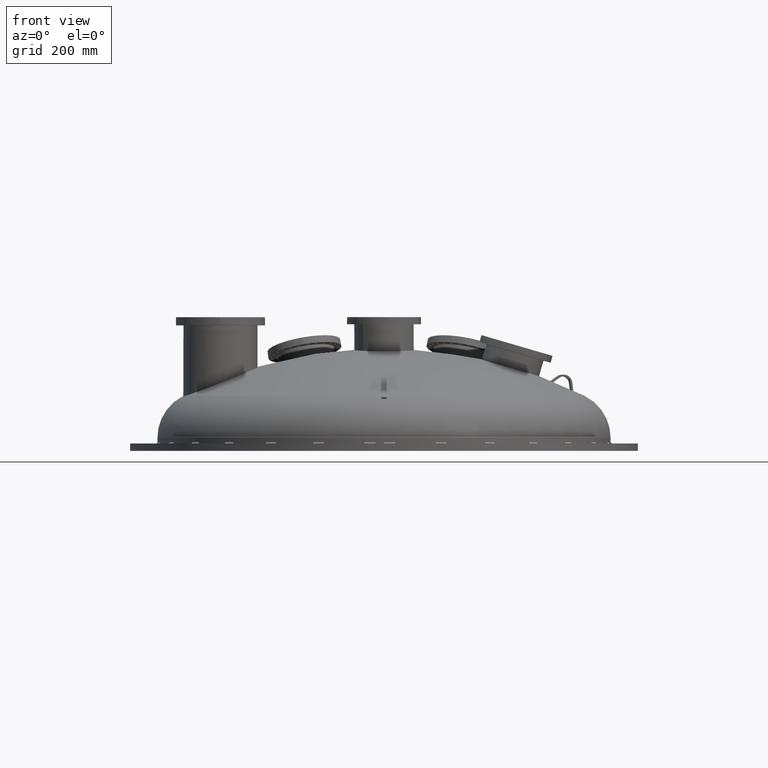
[diagram: clean part render]
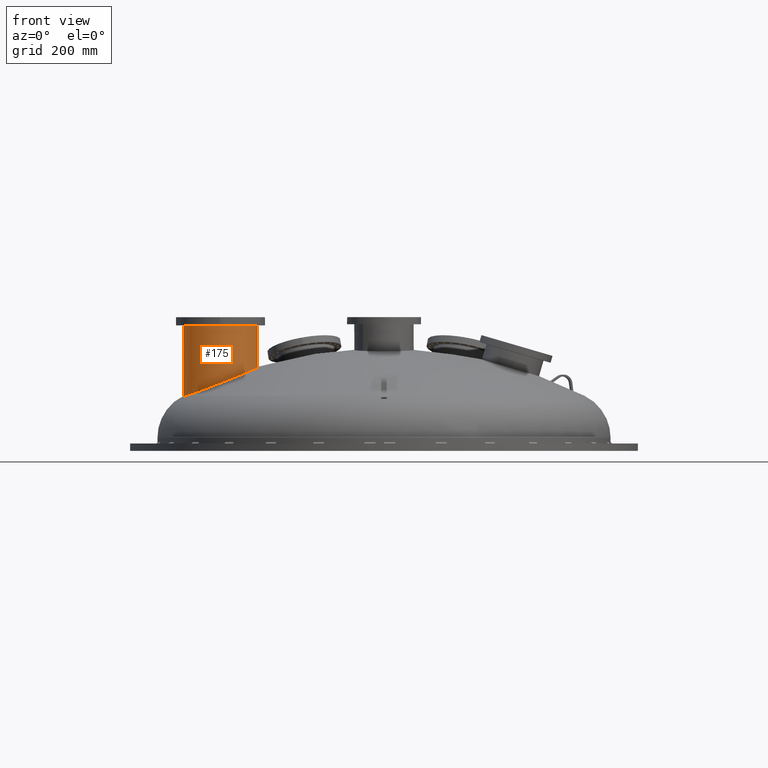
[diagram: same view with one face highlighted and labeled with its STEP entity id]
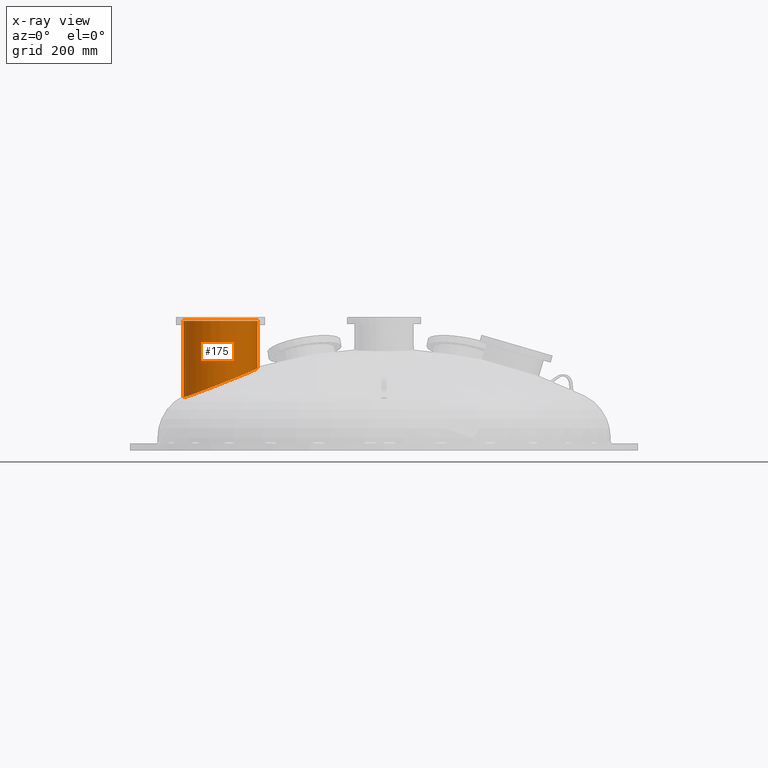
[diagram: x-ray of the same camera — body ghosted, the highlighted face saturated]
A machine part, front view. The second image highlights one B-rep face of the part: STEP entity #175.
The next image is the same camera in x-ray: the body ghosted, the highlighted face saturated — about 0% of this face is hidden behind the body in this view.
In plain terms, the highlighted cylindrical surface (bore or boss wall) has radius 127 mm, axis along (-0, -0, 1).
Its self-contained STEP definition (entity closure, byte-faithful):
#88 = CARTESIAN_POINT ( 'NONE',  ( -17.03454863221168125, -2.888648846415418525, 11.11092504920758905 ) ) ;
#175 = ADVANCED_FACE ( 'NONE', ( #24210, #8603 ), #16236, .T. ) ;
#378 = CARTESIAN_POINT ( 'NONE',  ( -26.91084152535004037, -1.360581039014059135, 7.308263998955751184 ) ) ;
#565 = CARTESIAN_POINT ( 'NONE',  ( -26.60930552109050851, -4.238202213252508344, 7.308263998955749408 ) ) ;
#619 = CARTESIAN_POINT ( 'NONE',  ( -23.67972091146016211, 2.411004436346439128, 8.757887126058699678 ) ) ;
#695 = CARTESIAN_POINT ( 'NONE',  ( -26.13499194246405466, -5.112656040607974184, 7.463060936114707999 ) ) ;
#752 = CARTESIAN_POINT ( 'NONE',  ( -17.25519042708335959, -0.7161709801282579724, 11.11357766232980460 ) ) ;
#885 = CARTESIAN_POINT ( 'NONE',  ( -26.17393540491700676, 0.4563803238809668317, 7.682613628264004291 ) ) ;
#1007 = CARTESIAN_POINT ( 'NONE',  ( -17.76262779274797765, 0.3538566771928217114, 10.96373746287888551 ) ) ;
#1113 = CARTESIAN_POINT ( 'NONE',  ( -26.98512067342971932, -1.844313376774368018, 7.256650016149816196 ) ) ;
#1140 = CARTESIAN_POINT ( 'NONE',  ( -19.61979623065603562, 2.106329999584297674, 10.32513199719387842 ) ) ;
#1251 = CARTESIAN_POINT ( 'NONE',  ( -18.28125984896919221, -5.643109768327902565, 10.52675692674171337 ) ) ;
#1317 = EDGE_CURVE ( 'NONE', #11589, #4820, #21739, .T. ) ;
#1650 = CARTESIAN_POINT ( 'NONE',  ( -22.00000000000000355, -2.300599928663488392, 17.50000000000000000 ) ) ;
#1723 = CARTESIAN_POINT ( 'NONE',  ( -23.12949110631962313, -7.171489711280562673, 8.578493592685848768 ) ) ;
#1850 = CARTESIAN_POINT ( 'NONE',  ( -18.43459769598376141, -5.806806038479090049, 10.46152507389343356 ) ) ;
#1979 = CARTESIAN_POINT ( 'NONE',  ( -23.65331364298999972, -7.028213393768560913, 8.376833065619633700 ) ) ;
#2087 = CARTESIAN_POINT ( 'NONE',  ( -18.13357437886203982, -5.474413113026209032, 10.58997342605866088 ) ) ;
#2500 = CARTESIAN_POINT ( 'NONE',  ( -25.81763148723965173, 0.9316578560976229717, 7.845753435345422133 ) ) ;
#2623 = CARTESIAN_POINT ( 'NONE',  ( -26.08970691586491242, 0.5797385813231358265, 7.721687858268396987 ) ) ;
#2754 = CARTESIAN_POINT ( 'NONE',  ( -25.35439753358903658, 1.407970034357033828, 8.051181969123211601 ) ) ;
#2877 = CARTESIAN_POINT ( 'NONE',  ( -18.43768523999666087, 1.211137170921507744, 10.74120913522562226 ) ) ;
#2993 = CARTESIAN_POINT ( 'NONE',  ( -22.13178497235033859, 2.698183655108841617, 9.377032089186451813 ) ) ;
#3117 = CARTESIAN_POINT ( 'NONE',  ( -23.09406433196298636, -7.179569782327591909, 8.592179378259533706 ) ) ;
#3572 = CARTESIAN_POINT ( 'NONE',  ( -17.00250312868686109, -2.079971429572094799, 11.15511920327153916 ) ) ;
#3695 = CARTESIAN_POINT ( 'NONE',  ( -20.95008121321527739, -7.191241604980521451, 9.433770713482987347 ) ) ;
#3813 = CARTESIAN_POINT ( 'NONE',  ( -22.23720637589785554, -7.303231902276164256, 8.925240544865479464 ) ) ;
#3939 = CARTESIAN_POINT ( 'NONE',  ( -19.73047951608260320, -6.756447584176479282, 9.924798341778512167 ) ) ;
#4125 = AXIS2_PLACEMENT_3D ( 'NONE', #23968, #7095, #4847 ) ;
#4173 = CARTESIAN_POINT ( 'NONE',  ( -26.09160426887386208, -5.175422892887286075, 7.477927953534289962 ) ) ;
#4362 = CARTESIAN_POINT ( 'NONE',  ( -22.56451117588003186, 2.669501389840496675, 9.206768470613566180 ) ) ;
#4477 = CARTESIAN_POINT ( 'NONE',  ( -19.24481798667008547, 1.874393774019742276, 10.45949627558731265 ) ) ;
#4581 = CARTESIAN_POINT ( 'NONE',  ( -26.70445430126011388, -4.011855557259706551, 7.279329110224899146 ) ) ;
#4604 = CARTESIAN_POINT ( 'NONE',  ( -20.21982897751013653, 2.372335189419764401, 10.10507433598720972 ) ) ;
#4736 = CARTESIAN_POINT ( 'NONE',  ( -17.86539581277328637, 0.5151517893729725683, 10.93114487143467173 ) ) ;
#4820 = VERTEX_POINT ( 'NONE', #16354 ) ;
#4847 = DIRECTION ( 'NONE',  ( 0.9951847266721969287, 0.09801714032955967382, 0.0000000000000000000 ) ) ;
#4853 = CARTESIAN_POINT ( 'NONE',  ( -21.91552221261713740, 2.699202996723948811, 9.461398831814339161 ) ) ;
#4967 = CARTESIAN_POINT ( 'NONE',  ( -24.31638578408431073, -6.734059063610549956, 8.125012170350084162 ) ) ;
#5438 = CARTESIAN_POINT ( 'NONE',  ( -16.99839070805311891, -2.387527508328878501, 11.14448272943456963 ) ) ;
#5543 = CARTESIAN_POINT ( 'NONE',  ( -26.91084152535004037, -1.360581039014059135, 7.308263998955751184 ) ) ;
#5562 = CARTESIAN_POINT ( 'NONE',  ( -17.06758293456559983, -1.466578981214567756, 11.15481489060235809 ) ) ;
#5679 = CARTESIAN_POINT ( 'NONE',  ( -23.02295103800876319, -7.194973715908750123, 8.619674863630050865 ) ) ;
#5807 = CARTESIAN_POINT ( 'NONE',  ( -19.34745307717916774, -6.541509074953713032, 10.08132628869596381 ) ) ;
#6046 = CARTESIAN_POINT ( 'NONE',  ( -25.40116154046670616, -5.968570887441477346, 7.722640789847509346 ) ) ;
#6159 = CARTESIAN_POINT ( 'NONE',  ( -25.95534340438065257, -5.359473985859828815, 7.525142038195032690 ) ) ;
#6220 = CARTESIAN_POINT ( 'NONE',  ( -26.60262773672108949, -0.3413517450155327260, 7.476124793558262205 ) ) ;
#6353 = CARTESIAN_POINT ( 'NONE',  ( -26.29238292405809219, 0.2639429035619736408, 7.626808986819469283 ) ) ;
#6418 = CARTESIAN_POINT ( 'NONE',  ( -25.50852392069591090, -5.866060936327992970, 7.683781968358652570 ) ) ;
#6467 = CARTESIAN_POINT ( 'NONE',  ( -22.42118115851190652, 2.683735887462491476, 9.263422606491555911 ) ) ;
#6597 = CARTESIAN_POINT ( 'NONE',  ( -18.54424714027179633, 1.316056665913713175, 10.70478958245215750 ) ) ;
#6725 = CARTESIAN_POINT ( 'NONE',  ( -18.23408668084476503, 0.9918582378966398494, 10.80998354203444478 ) ) ;
#6827 = CARTESIAN_POINT ( 'NONE',  ( -26.91084152535004037, -1.360581039014059135, 7.308263998955751184 ) ) ;
#6845 = CARTESIAN_POINT ( 'NONE',  ( -19.66553079479646371, -6.722774866265549321, 9.951255545470852226 ) ) ;
#7095 = DIRECTION ( 'NONE',  ( -3.253258288883481936E-18, -1.598223312192492571E-19, 1.000000000000000000 ) ) ;
#7315 = CARTESIAN_POINT ( 'NONE',  ( -17.04915190290446603, -3.004260629318171727, 11.10080991909084958 ) ) ;
#7345 = ORIENTED_EDGE ( 'NONE', *, *, #21594, .T. ) ;
#7440 = CARTESIAN_POINT ( 'NONE',  ( -17.13340261699011080, -3.457968870191340027, 11.05089033284481026 ) ) ;
#7490 = DIRECTION ( 'NONE',  ( 0.9951847266721969287, 0.09801714032955967382, 0.0000000000000000000 ) ) ;
#7571 = CARTESIAN_POINT ( 'NONE',  ( -19.86118964552333210, -6.820643271779196937, 9.871660036310329289 ) ) ;
#7685 = CARTESIAN_POINT ( 'NONE',  ( -17.06063652736476399, -3.080743627078291080, 11.09342660260088209 ) ) ;
#7823 = EDGE_LOOP ( 'NONE', ( #11328, #9371 ) ) ;
#7932 = CARTESIAN_POINT ( 'NONE',  ( -26.54922063506848318, -4.381136394884180163, 7.326535904158885337 ) ) ;
#7980 = CARTESIAN_POINT ( 'NONE',  ( -26.71254721671490273, -0.6228829506857630482, 7.419793872830630299 ) ) ;
#8050 = CARTESIAN_POINT ( 'NONE',  ( -24.82221075664396892, -6.428631079264673254, 7.935579580659530841 ) ) ;
#8123 = VERTEX_POINT ( 'NONE', #19603 ) ;
#8225 = CARTESIAN_POINT ( 'NONE',  ( -17.48382697809174502, -0.1494069415116378585, 11.04947627699419854 ) ) ;
#8299 = CARTESIAN_POINT ( 'NONE',  ( -25.06263585320626675, -6.255619985829578233, 7.846501837393472734 ) ) ;
#8363 = CARTESIAN_POINT ( 'NONE',  ( -17.16681485255331552, -1.010656400171438207, 11.13534692075112353 ) ) ;
#8464 = CARTESIAN_POINT ( 'NONE',  ( -26.94670951989270691, -3.069239399090599285, 7.217988032296413614 ) ) ;
#8485 = CARTESIAN_POINT ( 'NONE',  ( -24.08335129347704395, 2.247019943697150079, 8.591608839422123722 ) ) ;
#8588 = CARTESIAN_POINT ( 'NONE',  ( -26.99570727274382165, -2.516647116475179580, 7.221860072491950611 ) ) ;
#8603 = FACE_OUTER_BOUND ( 'NONE', #7823, .T. ) ;
#8612 = CARTESIAN_POINT ( 'NONE',  ( -20.49670642701362766, 2.468619211551259518, 10.00220548123914810 ) ) ;
#8740 = CARTESIAN_POINT ( 'NONE',  ( -26.33069591292129275, 0.1987007765081426902, 7.608623616731867934 ) ) ;
#8790 = EDGE_LOOP ( 'NONE', ( #7345 ) ) ;
#8855 = CARTESIAN_POINT ( 'NONE',  ( -20.53079694923754417, -7.088528943960248796, 9.601245908657746853 ) ) ;
#9245 = DIRECTION ( 'NONE',  ( 3.253258288883481936E-18, 1.598223312192492571E-19, -1.000000000000000000 ) ) ;
#9320 = CARTESIAN_POINT ( 'NONE',  ( -17.21301417029741998, -3.752508886332220683, 11.00900941416065670 ) ) ;
#9371 = ORIENTED_EDGE ( 'NONE', *, *, #1317, .F. ) ;
#9444 = CARTESIAN_POINT ( 'NONE',  ( -17.55723223684687895, -4.599538687237948231, 10.84458160080521871 ) ) ;
#9564 = CARTESIAN_POINT ( 'NONE',  ( -17.04417807079283520, -1.619711267789774034, 11.15759821381699268 ) ) ;
#9675 = CARTESIAN_POINT ( 'NONE',  ( -18.48711107463859804, -5.859404774117014547, 10.43930629756934891 ) ) ;
#10035 = CARTESIAN_POINT ( 'NONE',  ( -26.33878561821323316, -4.790256337125438080, 7.394349264585322601 ) ) ;
#10088 = CARTESIAN_POINT ( 'NONE',  ( -25.29899772129395075, 1.457331208551941204, 8.075382181554541461 ) ) ;
#10221 = CARTESIAN_POINT ( 'NONE',  ( -26.34955175481047718, 0.1657406935613200960, 7.599635441393319368 ) ) ;
#10347 = CARTESIAN_POINT ( 'NONE',  ( -25.12988381380910141, 1.599294617582884381, 8.148825253188913820 ) ) ;
#10472 = CARTESIAN_POINT ( 'NONE',  ( -17.62555617910246397, 0.1222402751691395728, 11.00653403869728741 ) ) ;
#10596 = CARTESIAN_POINT ( 'NONE',  ( -24.84133953462131217, 1.824008198853615426, 8.273263027822961746 ) ) ;
#10723 = CARTESIAN_POINT ( 'NONE',  ( -17.33893272053117229, -4.111746606789912661, 10.94694563802238996 ) ) ;
#11184 = CARTESIAN_POINT ( 'NONE',  ( -17.25943246320031932, -3.897541168263227718, 10.98563987666997122 ) ) ;
#11303 = CARTESIAN_POINT ( 'NONE',  ( -21.09171006851947894, -7.219547109161549514, 9.377377659949070576 ) ) ;
#11328 = ORIENTED_EDGE ( 'NONE', *, *, #13594, .F. ) ;
#11374 = CIRCLE ( 'NONE', #23337, 5.000000000000001776 ) ;
#11425 = CARTESIAN_POINT ( 'NONE',  ( -18.04062783131409375, -5.357667286881575563, 10.63013483388600022 ) ) ;
#11484 = CARTESIAN_POINT ( 'NONE',  ( -26.44019250445156288, -0.0005128586099850010287, 7.556080114271650494 ) ) ;
#11551 = CARTESIAN_POINT ( 'NONE',  ( -19.92701126340332607, -6.851199240982132288, 9.844954354351044046 ) ) ;
#11589 = VERTEX_POINT ( 'NONE', #6827 ) ;
#11784 = CARTESIAN_POINT ( 'NONE',  ( -26.26077028559850746, -4.921498312277129195, 7.420335662494194295 ) ) ;
#11967 = CARTESIAN_POINT ( 'NONE',  ( -20.28834214839944039, 2.397867169585406799, 10.07970584558741933 ) ) ;
#12070 = CARTESIAN_POINT ( 'NONE',  ( -26.78206430117094428, -3.780823501420270016, 7.256707214193194311 ) ) ;
#12097 = CARTESIAN_POINT ( 'NONE',  ( -21.27134370633982741, 2.654429586486443338, 9.710108242658801458 ) ) ;
#12224 = CARTESIAN_POINT ( 'NONE',  ( -18.88458480624458957, 1.610358220876237922, 10.58666547969227700 ) ) ;
#12334 = CARTESIAN_POINT ( 'NONE',  ( -27.00140445540874268, -2.332594344501957462, 7.227748212957250118 ) ) ;
#12354 = CARTESIAN_POINT ( 'NONE',  ( -17.68298857302600524, 0.2222735696019396412, 10.98872449637543980 ) ) ;
#12453 = CARTESIAN_POINT ( 'NONE',  ( -26.98431091989106534, -2.701160486667625982, 7.218409758329301873 ) ) ;
#12476 = CARTESIAN_POINT ( 'NONE',  ( -24.21429132746689206, 2.184693554147211447, 8.537179658521852232 ) ) ;
#12596 = CARTESIAN_POINT ( 'NONE',  ( -17.62885968895741584, -4.732827976420541205, 10.81202205414115980 ) ) ;
#13079 = CARTESIAN_POINT ( 'NONE',  ( -18.35727019309563701, -5.725787992462125331, 10.49436741636323944 ) ) ;
#13198 = CARTESIAN_POINT ( 'NONE',  ( -17.41179260103420390, -4.288012786321757197, 10.91226162510630715 ) ) ;
#13318 = CARTESIAN_POINT ( 'NONE',  ( -23.30546474177862493, -7.127710632834163285, 8.510619097972259794 ) ) ;
#13437 = CARTESIAN_POINT ( 'NONE',  ( -17.01869339362751532, -2.734281985999276188, 11.12304962103741701 ) ) ;
#13562 = CARTESIAN_POINT ( 'NONE',  ( -26.02432194035063517, -5.268139492441256344, 7.501167703503505813 ) ) ;
#13594 = EDGE_CURVE ( 'NONE', #4820, #11589, #21059, .T. ) ;
#13675 = CARTESIAN_POINT ( 'NONE',  ( -25.81379757595065527, -5.537562809577217138, 7.574708603269955098 ) ) ;
#13863 = CARTESIAN_POINT ( 'NONE',  ( -19.12254352747171282, 1.791160598544841775, 10.50295269956947486 ) ) ;
#13970 = CARTESIAN_POINT ( 'NONE',  ( -26.60930552109050851, -4.238202213252508344, 7.308263998955749408 ) ) ;
#13994 = CARTESIAN_POINT ( 'NONE',  ( -25.18679736349747245, 1.552938051058721403, 8.124178892221472381 ) ) ;
#14059 = CARTESIAN_POINT ( 'NONE',  ( -25.71484130650910771, -5.650556102514899592, 7.609816174530787514 ) ) ;
#14124 = CARTESIAN_POINT ( 'NONE',  ( -23.26937909323656584, 2.544128015066949189, 8.925121977423971842 ) ) ;
#14248 = CARTESIAN_POINT ( 'NONE',  ( -17.95270493722984995, 0.6391452247622321226, 10.90291889562296923 ) ) ;
#14374 = CARTESIAN_POINT ( 'NONE',  ( -17.74239330587100838, 0.3212817975614281063, 10.97012119050374856 ) ) ;
#14486 = CARTESIAN_POINT ( 'NONE',  ( -23.23538462232381718, -7.146123075812816694, 8.537621078382787942 ) ) ;
#14944 = CARTESIAN_POINT ( 'NONE',  ( -24.60370078809268080, -6.569335956658477471, 8.017113766661394081 ) ) ;
#15079 = CARTESIAN_POINT ( 'NONE',  ( -17.86528298036781237, -5.115986930553453327, 10.70668509835174653 ) ) ;
#15202 = CARTESIAN_POINT ( 'NONE',  ( -22.80876749955237770, -7.236898625912594696, 8.702616237488467021 ) ) ;
#15314 = CARTESIAN_POINT ( 'NONE',  ( -17.01163750635907945, -1.926407472093907502, 11.15775062662200590 ) ) ;
#15363 = CARTESIAN_POINT ( 'NONE',  ( -26.76124962563058318, -0.7664174598453088461, 7.394017649969605088 ) ) ;
#15849 = CARTESIAN_POINT ( 'NONE',  ( -17.42024199879919166, -0.2883474196289822489, 11.06805099289955585 ) ) ;
#15923 = CARTESIAN_POINT ( 'NONE',  ( -24.88308982747695097, -6.386340198453234862, 7.912970085545049770 ) ) ;
#15978 = CARTESIAN_POINT ( 'NONE',  ( -17.12915856579179419, -1.160761005406076407, 11.14364310375749234 ) ) ;
#16109 = CARTESIAN_POINT ( 'NONE',  ( -25.62024818288583106, 1.151298629206398472, 7.934085688371547818 ) ) ;
#16216 = CARTESIAN_POINT ( 'NONE',  ( -26.95700841744898923, -1.601765863396056311, 7.279325414198574151 ) ) ;
#16236 = CYLINDRICAL_SURFACE ( 'NONE', #4125, 5.000000000000001776 ) ;
#16240 = CARTESIAN_POINT ( 'NONE',  ( -17.58890893191569305, 0.05484866916508868845, 11.01775301763535886 ) ) ;
#16354 = CARTESIAN_POINT ( 'NONE',  ( -26.60930552109050851, -4.238202213252508344, 7.308263998955749408 ) ) ;
#16359 = CARTESIAN_POINT ( 'NONE',  ( -20.70678692896677831, 2.531477372953308880, 9.923634531800113123 ) ) ;
#16478 = CARTESIAN_POINT ( 'NONE',  ( -17.47474751869819798, -4.427463001661761766, 10.88278884178349770 ) ) ;
#16932 = CARTESIAN_POINT ( 'NONE',  ( -17.36708084073330838, -4.182590384149164286, 10.93343993728996466 ) ) ;
#17062 = CARTESIAN_POINT ( 'NONE',  ( -17.78288429668327097, -4.991052686092432467, 10.74307405887344480 ) ) ;
#17181 = CARTESIAN_POINT ( 'NONE',  ( -22.66592775713177232, -7.258138491733479469, 8.758122627812626959 ) ) ;
#17298 = CARTESIAN_POINT ( 'NONE',  ( -18.75436344898096763, -6.115509083269178525, 10.32662745269949411 ) ) ;
#17595 = CARTESIAN_POINT ( 'NONE',  ( -26.84582870786087838, -1.059166088594753141, 7.347384100707344601 ) ) ;
#17711 = CARTESIAN_POINT ( 'NONE',  ( -23.81519361115260125, 2.360544916710082930, 8.702322827363925484 ) ) ;
#17847 = CARTESIAN_POINT ( 'NONE',  ( -22.99056458732737340, 2.608687365220110799, 9.037349311496274851 ) ) ;
#17976 = CARTESIAN_POINT ( 'NONE',  ( -18.13704967337604756, 0.8774991362257029692, 10.84233851344048460 ) ) ;
#18102 = CARTESIAN_POINT ( 'NONE',  ( -20.42671370587473234, 2.445992102572273730, 10.02829669349818609 ) ) ;
#18199 = CARTESIAN_POINT ( 'NONE',  ( -26.97896696587380205, -2.762859930819623333, 7.217921442787861075 ) ) ;
#18225 = CARTESIAN_POINT ( 'NONE',  ( -22.20415813536249416, 2.695755616112697872, 9.348684929268463506 ) ) ;
#18353 = CARTESIAN_POINT ( 'NONE',  ( -17.45858474290971785, -4.392730477704813730, 10.89031439224891251 ) ) ;
#18442 = CARTESIAN_POINT ( 'NONE',  ( -27.00067442903366555, -2.210258125871627843, 7.233605586745707861 ) ) ;
#18812 = CARTESIAN_POINT ( 'NONE',  ( -21.52158969664901278, -7.279727971131696229, 9.206915662599531203 ) ) ;
#18920 = CARTESIAN_POINT ( 'NONE',  ( -21.37834336244138811, -7.263922907186853628, 9.263601308483790930 ) ) ;
#19048 = CARTESIAN_POINT ( 'NONE',  ( -19.47250542643405069, -6.617228448213493763, 10.03005275799201534 ) ) ;
#19166 = CARTESIAN_POINT ( 'NONE',  ( -23.92348503383467317, -6.924993654594245207, 8.273690803535664884 ) ) ;
#19583 = CARTESIAN_POINT ( 'NONE',  ( -26.27290537738541332, 0.2962629750618193114, 7.636016011459054731 ) ) ;
#19603 = CARTESIAN_POINT ( 'NONE',  ( -17.02407636663901869, -1.810514227015689759, 17.50000000000000000 ) ) ;
#19681 = CARTESIAN_POINT ( 'NONE',  ( -26.90319185867425134, -3.309515387415557175, 7.226037049726478756 ) ) ;
#19704 = CARTESIAN_POINT ( 'NONE',  ( -18.71125475202197563, 1.466330238137662167, 10.64708537429526025 ) ) ;
#19839 = CARTESIAN_POINT ( 'NONE',  ( -18.85523035247257084, 1.586794567659153055, 10.59693512667017856 ) ) ;
#19957 = CARTESIAN_POINT ( 'NONE',  ( -18.94358002618145775, 1.656634259576619028, 10.56597711130992323 ) ) ;
#20083 = CARTESIAN_POINT ( 'NONE',  ( -18.97325870631849298, 1.679378512085957231, 10.55554519006556191 ) ) ;
#20204 = CARTESIAN_POINT ( 'NONE',  ( -20.25840785566388291, -6.996410748542438718, 9.710751838670889313 ) ) ;
#20670 = CARTESIAN_POINT ( 'NONE',  ( -17.02220070990741974, -2.772848097600169925, 11.12019252565966809 ) ) ;
#20787 = CARTESIAN_POINT ( 'NONE',  ( -18.98304879157100444, -6.298507839731016134, 10.23144863232432122 ) ) ;
#20910 = CARTESIAN_POINT ( 'NONE',  ( -17.42711161405187070, -4.323012987666286833, 10.90504883252502744 ) ) ;
#20966 = CARTESIAN_POINT ( 'NONE',  ( -26.54141003713472813, -0.2033553315140337603, 7.506679756939834469 ) ) ;
#21033 = CARTESIAN_POINT ( 'NONE',  ( -17.10020837744864153, -3.308461464537235219, 11.06940205479880746 ) ) ;
#21059 = B_SPLINE_CURVE_WITH_KNOTS ( 'NONE', 3,
 ( #13970, #4581, #12070, #19681, #8464, #18199, #12453, #23949, #8588, #12334, #18442, #1113, #16216, #5543 ),
 .UNSPECIFIED., .F., .F.,
 ( 4, 2, 2, 2, 2, 2, 4 ),
 ( 1.684976487483612091E-06, 0.01857755657300125957, 0.03715342816951503618, 0.04179739606864351503, 0.04644136396777198694, 0.05572929976602893076, 0.07430517136254283228 ),
 .UNSPECIFIED. ) ;
#21281 = CARTESIAN_POINT ( 'NONE',  ( -25.17821768885217182, -6.163350645582163168, 7.804000627022965375 ) ) ;
#21465 = CARTESIAN_POINT ( 'NONE',  ( -24.59787036417707284, 1.981320716361038015, 8.376642890276192688 ) ) ;
#21583 = CARTESIAN_POINT ( 'NONE',  ( -19.88059565564106279, 2.237398420737493510, 10.23025764740401655 ) ) ;
#21594 = EDGE_CURVE ( 'NONE', #8123, #8123, #11374, .T. ) ;
#21651 = CARTESIAN_POINT ( 'NONE',  ( -26.00150389766623960, -5.298835826875677668, 7.509079163868273454 ) ) ;
#21711 = CARTESIAN_POINT ( 'NONE',  ( -25.51678873933515490, 1.256659254858348840, 7.979922143295393511 ) ) ;
#21739 = B_SPLINE_CURVE_WITH_KNOTS ( 'NONE', 3,
 ( #378, #23341, #17595, #15363, #7980, #6220, #20966, #11484, #22983, #10221, #8740, #6353, #19583, #885, #2623, #21843, #2500, #16109, #21711, #2754, #10088, #13994, #10347, #10596, #21465, #12476, #8485, #17711, #619, #14124, #17847, #4362, #6467, #18225, #2993, #23972, #4853, #23598, #12097, #23724, #16359, #8612, #18102, #11967, #4604, #21583, #1140, #4477, #13863, #20083, #19957, #12224, #19839, #23857, #19704, #6597, #2877, #6725, #17976, #14248, #4736, #1007, #14374, #21965, #12354, #10472, #16240, #8225, #15849, #23477, #752, #8363, #15978, #5562, #9564, #15314, #3572, #5438, #22927, #13437, #20670, #22084, #88, #7315, #7685, #21033, #7440, #9320, #11184, #10723, #16932, #13198, #20910, #18353, #16478, #9444, #12596, #17062, #15079, #11425, #2087, #22693, #1251, #24551, #13079, #1850, #9675, #17298, #20787, #5807, #19048, #6845, #3939, #7571, #11551, #20204, #8855, #3695, #11303, #18920, #18812, #24684, #3813, #17181, #15202, #22810, #5679, #3117, #1723, #14486, #13318, #1979, #19166, #4967, #24427, #14944, #22554, #23543, #23169, #8050, #15923, #8299, #21281, #6046, #6418, #14059, #13675, #23417, #6159, #21651, #13562, #4173, #695, #11784, #10035, #23050, #7932, #565 ),
 .UNSPECIFIED., .F., .F.,
 ( 4, 2, 2, 2, 2, 2, 2, 2, 2, 2, 2, 2, 2, 2, 2, 2, 2, 2, 2, 2, 2, 2, 2, 2, 2, 2, 2, 2, 2, 2, 2, 2, 2, 2, 2, 2, 2, 2, 2, 2, 2, 2, 2, 2, 2, 2, 2, 2, 2, 2, 2, 2, 2, 2, 2, 2, 2, 2, 2, 2, 2, 2, 2, 2, 2, 2, 2, 2, 2, 2, 2, 2, 2, 2, 2, 2, 2, 2, 4 ),
 ( 1.683187670513126410E-06, 0.01171272818732335165, 0.02342377318697618990, 0.03513481818662903683, 0.04099034068645553142, 0.04391810193636885851, 0.04684586318628217866, 0.05855690818593533437, 0.07026795318558848313, 0.08197899818524163884, 0.08783452068506834853, 0.09369004318489504435, 0.1171121331842013558, 0.1288231781838545531, 0.1405342231835077227, 0.1639563131828140341, 0.1756673581824670927, 0.1815228806822937468, 0.1873784031821204010, 0.2108004931814267124, 0.2225115381810799098, 0.2283670606809063142, 0.2342225831807327185, 0.2576446731800386969, 0.2693557181796917277, 0.2722834794296050687, 0.2752112406795184096, 0.2810667631793451471, 0.2927778081789985110, 0.3044888531786518193, 0.3161998981783051832, 0.3191276594282184687, 0.3220554206781318096, 0.3279109431779585471, 0.3396219881776120220, 0.3513330331772654969, 0.3630440781769189718, 0.3747551231765724467, 0.3864661681762259215, 0.3981772131758794520, 0.4011049744257928484, 0.4040327356757061894, 0.4098882581755329269, 0.4215993031751863462, 0.4333103481748398211, 0.4391658706746665586, 0.4420936319245798440, 0.4450213931744931295, 0.4567324381741465489, 0.4684434831737999128, 0.4801545281734533877, 0.4830822894233666731, 0.4860100506732799586, 0.4918655731731066405, 0.5152876631724131462, 0.5269987081720665101, 0.5328542306718931920, 0.5387097531717198740, 0.5621318431710269348, 0.5738428881706806317, 0.5855539331703343287, 0.6089760231696412784, 0.6206870681692948644, 0.6236148294192083164, 0.6265425906691217683, 0.6323981131689486723, 0.6558202031682575095, 0.6675312481679118726, 0.6704590094178254356, 0.6733867706677391096, 0.6792422931675662356, 0.6909533381672204877, 0.7026643831668749618, 0.7143754281665292138, 0.7173031894164427769, 0.7202309506663563399, 0.7260864731661836879, 0.7377975181658383841, 0.7495085631654930802 ),
 .UNSPECIFIED. ) ;
#21843 = CARTESIAN_POINT ( 'NONE',  ( -25.91155554791207294, 0.8173779072717767269, 7.803257535315951010 ) ) ;
#21965 = CARTESIAN_POINT ( 'NONE',  ( -17.70257273907946072, 0.2554903446447653326, 10.98261507607034027 ) ) ;
#22084 = CARTESIAN_POINT ( 'NONE',  ( -17.03012524631596847, -2.850007826499287855, 11.11413234719696241 ) ) ;
#22554 = CARTESIAN_POINT ( 'NONE',  ( -24.63524913537954575, -6.549934094061657497, 8.005310565332315775 ) ) ;
#22693 = CARTESIAN_POINT ( 'NONE',  ( -18.25636958802395782, -5.615208112799623841, 10.53739233467029202 ) ) ;
#22810 = CARTESIAN_POINT ( 'NONE',  ( -22.98723194321213370, -7.202303198584195876, 8.633497199679780465 ) ) ;
#22927 = CARTESIAN_POINT ( 'NONE',  ( -17.00341238058855708, -2.541519621232264825, 11.13647779625521217 ) ) ;
#22983 = CARTESIAN_POINT ( 'NONE',  ( -26.40488576186426783, 0.06640821567605073583, 7.573142449452073599 ) ) ;
#23050 = CARTESIAN_POINT ( 'NONE',  ( -26.48301017228870080, -4.520074972038768735, 7.347449661293450340 ) ) ;
#23169 = CARTESIAN_POINT ( 'NONE',  ( -24.72933157744540011, -6.490125895186679372, 7.970178157788430084 ) ) ;
#23337 = AXIS2_PLACEMENT_3D ( 'NONE', #1650, #9245, #7490 ) ;
#23341 = CARTESIAN_POINT ( 'NONE',  ( -26.88170750766064998, -1.208379263661823799, 7.326525943866707635 ) ) ;
#23417 = CARTESIAN_POINT ( 'NONE',  ( -25.93198253723119251, -5.389442692075093078, 7.533299753128099852 ) ) ;
#23477 = CARTESIAN_POINT ( 'NONE',  ( -17.30592388480086541, -0.5717295071467342060, 11.10010163015095408 ) ) ;
#23543 = CARTESIAN_POINT ( 'NONE',  ( -24.69807107735395491, -6.510325729269140105, 7.981840287322122585 ) ) ;
#23598 = CARTESIAN_POINT ( 'NONE',  ( -21.55633074939959926, 2.687968024612638285, 9.600822671313919088 ) ) ;
#23724 = CARTESIAN_POINT ( 'NONE',  ( -20.84747246475402704, 2.566893743964573371, 9.870675146597855942 ) ) ;
#23857 = CARTESIAN_POINT ( 'NONE',  ( -18.76811985747693257, 1.515235388611425593, 10.62733739031944324 ) ) ;
#23949 = CARTESIAN_POINT ( 'NONE',  ( -26.99267499923479718, -2.578089493854042846, 7.220380107673045167 ) ) ;
#23968 = CARTESIAN_POINT ( 'NONE',  ( -22.00000000000000355, -2.300599928663488392, 18.00000000000000000 ) ) ;
#23972 = CARTESIAN_POINT ( 'NONE',  ( -21.98750946293108655, 2.699904904132180317, 9.433372357257100660 ) ) ;
#24210 = FACE_OUTER_BOUND ( 'NONE', #8790, .T. ) ;
#24427 = CARTESIAN_POINT ( 'NONE',  ( -24.44528218986666346, -6.664363916528823317, 8.076464159210615890 ) ) ;
#24551 = CARTESIAN_POINT ( 'NONE',  ( -18.33170578853526678, -5.698395966873608387, 10.50524629160604206 ) ) ;
#24684 = CARTESIAN_POINT ( 'NONE',  ( -21.95112342440493691, -7.308591642608390337, 9.037445043274283663 ) ) ;